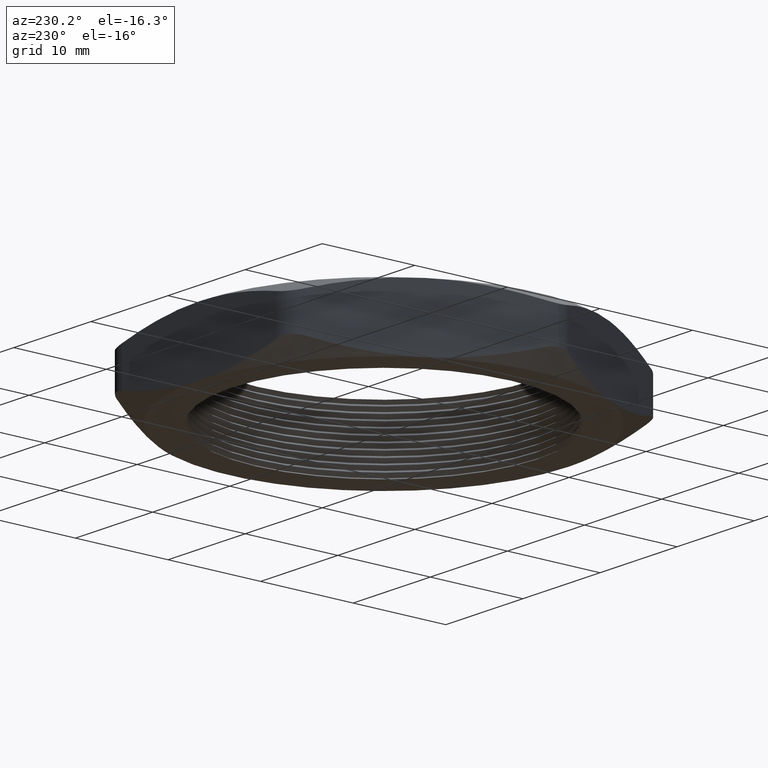
[diagram: clean part render]
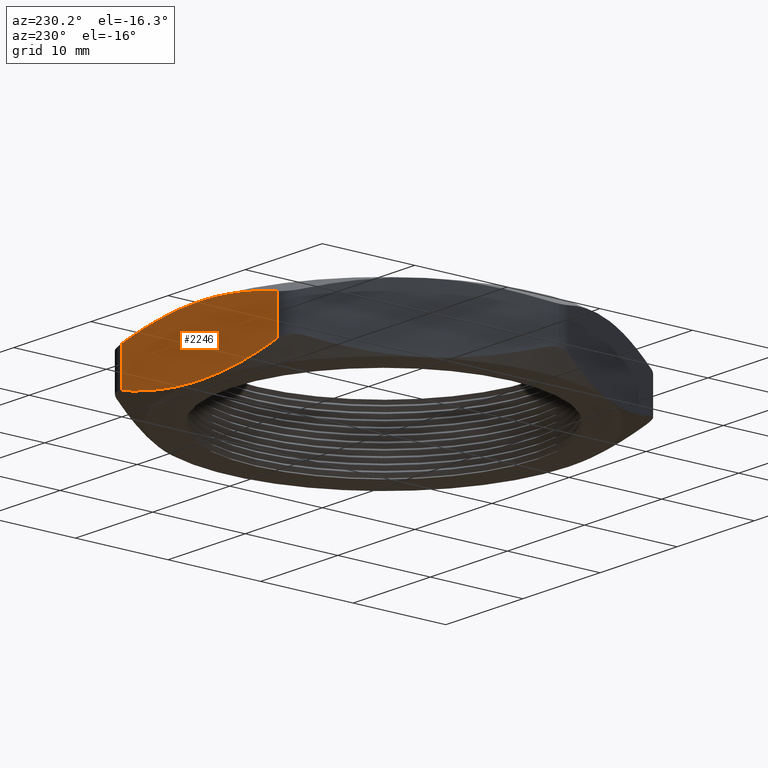
[diagram: same view with one face highlighted and labeled with its STEP entity id]
A machine part, auxiliary view. The second image highlights one B-rep face of the part: STEP entity #2246.
In plain terms, the highlighted planar face has unit normal (0, -1, 0).
Its self-contained STEP definition (entity closure, byte-faithful):
#1035 = CARTESIAN_POINT ( 'NONE',  ( -0.3954849343948989000, 0.7850000000000002500, 0.05426840746364128300 ) ) ;
#1079 = DIRECTION ( 'NONE',  ( 0.0000000000000000000, 0.0000000000000000000, 1.000000000000000000 ) ) ;
#1080 = VECTOR ( 'NONE', #1079, 39.37007874015748100 ) ;
#1081 = CARTESIAN_POINT ( 'NONE',  ( -0.3954849343948936300, 0.7850000000000002500, 0.2700000000000000200 ) ) ;
#1082 = LINE ( 'NONE', #1081, #1080 ) ;
#1089 = CARTESIAN_POINT ( 'NONE',  ( 0.0000000000000000000, 0.7849999999999999200, 0.0000000000000000000 ) ) ;
#1090 = CARTESIAN_POINT ( 'NONE',  ( -0.06673297656976975900, 0.7850000000000001400, -3.201384367575306900E-018 ) ) ;
#1091 = CARTESIAN_POINT ( 'NONE',  ( -0.1330237424117687000, 0.7850000000000003600, 0.004979122510642588000 ) ) ;
#1092 = CARTESIAN_POINT ( 'NONE',  ( -0.2318780627751794400, 0.7850000000000002500, 0.01899897000870633500 ) ) ;
#1093 = CARTESIAN_POINT ( 'NONE',  ( -0.2647336610413537600, 0.7850000000000002500, 0.02475139488869169300 ) ) ;
#1094 = CARTESIAN_POINT ( 'NONE',  ( -0.3302756248464527900, 0.7850000000000003600, 0.03816173999028780300 ) ) ;
#1095 = CARTESIAN_POINT ( 'NONE',  ( -0.3630381295239503700, 0.7850000000000002500, 0.04583982513204162100 ) ) ;
#1096 = CARTESIAN_POINT ( 'NONE',  ( -0.3954849343948989000, 0.7850000000000002500, 0.05426840746364128300 ) ) ;
#1098 = B_SPLINE_CURVE_WITH_KNOTS ( 'NONE', 3,
 ( #1096, #1095, #1094, #1093, #1092, #1091, #1090, #1089 ),
 .UNSPECIFIED., .F., .F.,
 ( 4, 2, 2, 4 ),
 ( 0.02283872067157867800, 0.02537414699772924300, 0.02790957332387981200, 0.03298042597618094200 ),
 .UNSPECIFIED. ) ;
#1112 = CARTESIAN_POINT ( 'NONE',  ( -0.3954849343948988500, 0.7850000000000002500, 0.2157315925363587400 ) ) ;
#1122 = PLANE ( 'NONE',  #1124 ) ;
#1124 = AXIS2_PLACEMENT_3D ( 'NONE', #1175, #1174, #1173 ) ;
#1125 = FACE_OUTER_BOUND ( 'NONE', #2242, .T. ) ;
#1173 = DIRECTION ( 'NONE',  ( 0.0000000000000000000, 0.0000000000000000000, -1.000000000000000000 ) ) ;
#1174 = DIRECTION ( 'NONE',  ( 0.0000000000000000000, -1.000000000000000000, 0.0000000000000000000 ) ) ;
#1175 = CARTESIAN_POINT ( 'NONE',  ( 0.4532199613138567200, 0.7850000000000002500, 0.2700000000000000200 ) ) ;
#1214 = CARTESIAN_POINT ( 'NONE',  ( 0.3954849343948942900, 0.7850000000000002500, 0.05426840746364027000 ) ) ;
#1241 = CARTESIAN_POINT ( 'NONE',  ( 0.0000000000000000000, 0.7850000000000002500, 0.2700000000000000200 ) ) ;
#1243 = B_SPLINE_CURVE_WITH_KNOTS ( 'NONE', 3,
 ( #1241, #1303, #1302, #1301, #1300, #1299, #1298, #1297 ),
 .UNSPECIFIED., .F., .F.,
 ( 4, 2, 2, 4 ),
 ( 0.06576646211690598300, 0.07083825212854769100, 0.07337414713436854500, 0.07591004214018939900 ),
 .UNSPECIFIED. ) ;
#1245 = CARTESIAN_POINT ( 'NONE',  ( 0.0000000000000000000, 0.7850000000000002500, 0.2700000000000000200 ) ) ;
#1246 = CARTESIAN_POINT ( 'NONE',  ( 0.03335006267424757400, 0.7850000000000002500, 0.2700000000000000700 ) ) ;
#1247 = CARTESIAN_POINT ( 'NONE',  ( 0.06680954462921447100, 0.7850000000000003600, 0.2687679810336712200 ) ) ;
#1248 = CARTESIAN_POINT ( 'NONE',  ( 0.1339463094652576000, 0.7850000000000002500, 0.2638515885425967200 ) ) ;
#1249 = CARTESIAN_POINT ( 'NONE',  ( 0.1672885223881052100, 0.7850000000000001400, 0.2601913730965734200 ) ) ;
#1250 = CARTESIAN_POINT ( 'NONE',  ( 0.2663661957990888200, 0.7849999999999999200, 0.2460477934152464100 ) ) ;
#1251 = CARTESIAN_POINT ( 'NONE',  ( 0.3313189336734860800, 0.7850000000000001400, 0.2323997489887721100 ) ) ;
#1252 = CARTESIAN_POINT ( 'NONE',  ( 0.3954849343948942900, 0.7850000000000002500, 0.2157315925363597300 ) ) ;
#1253 = CARTESIAN_POINT ( 'NONE',  ( 0.0000000000000000000, 0.7850000000000002500, 0.2700000000000000200 ) ) ;
#1254 = B_SPLINE_CURVE_WITH_KNOTS ( 'NONE', 3,
 ( #1252, #1251, #1250, #1249, #1248, #1247, #1246, #1245 ),
 .UNSPECIFIED., .F., .F.,
 ( 4, 2, 2, 4 ),
 ( 0.05562787556175466400, 0.06069716883933032300, 0.06323181547811815300, 0.06576646211690598300 ),
 .UNSPECIFIED. ) ;
#1255 = CARTESIAN_POINT ( 'NONE',  ( 0.3954849343948942900, 0.7850000000000002500, 0.2157315925363597300 ) ) ;
#1256 = DIRECTION ( 'NONE',  ( 0.0000000000000000000, 0.0000000000000000000, -1.000000000000000000 ) ) ;
#1257 = VECTOR ( 'NONE', #1256, 39.37007874015748100 ) ;
#1258 = CARTESIAN_POINT ( 'NONE',  ( 0.3954849343948941800, 0.7850000000000002500, 0.2700000000000000200 ) ) ;
#1259 = LINE ( 'NONE', #1258, #1257 ) ;
#1280 = CARTESIAN_POINT ( 'NONE',  ( 0.3954849343948942900, 0.7850000000000002500, 0.05426840746364027000 ) ) ;
#1281 = CARTESIAN_POINT ( 'NONE',  ( 0.3313189336734863000, 0.7850000000000002500, 0.03760025101122788100 ) ) ;
#1282 = CARTESIAN_POINT ( 'NONE',  ( 0.2663661957990888800, 0.7850000000000003600, 0.02395220658475356500 ) ) ;
#1283 = CARTESIAN_POINT ( 'NONE',  ( 0.1672885223881053500, 0.7850000000000002500, 0.009808626903426613900 ) ) ;
#1284 = CARTESIAN_POINT ( 'NONE',  ( 0.1339463094652578700, 0.7850000000000002500, 0.006148411457403356000 ) ) ;
#1285 = CARTESIAN_POINT ( 'NONE',  ( 0.06680954462921474800, 0.7850000000000003600, 0.001232018966328850600 ) ) ;
#1286 = CARTESIAN_POINT ( 'NONE',  ( 0.03335006267424770600, 0.7850000000000003600, 1.600692183787654600E-018 ) ) ;
#1287 = CARTESIAN_POINT ( 'NONE',  ( 0.0000000000000000000, 0.7849999999999999200, 0.0000000000000000000 ) ) ;
#1290 = B_SPLINE_CURVE_WITH_KNOTS ( 'NONE', 3,
 ( #1287, #1286, #1285, #1284, #1283, #1282, #1281, #1280 ),
 .UNSPECIFIED., .F., .F.,
 ( 4, 2, 2, 4 ),
 ( 0.03298042597618094200, 0.03551460416601949500, 0.03804878235585804100, 0.04311713873553513900 ),
 .UNSPECIFIED. ) ;
#1297 = CARTESIAN_POINT ( 'NONE',  ( -0.3954849343948988500, 0.7850000000000002500, 0.2157315925363587400 ) ) ;
#1298 = CARTESIAN_POINT ( 'NONE',  ( -0.3630381295239505900, 0.7850000000000002500, 0.2241601748679583600 ) ) ;
#1299 = CARTESIAN_POINT ( 'NONE',  ( -0.3302756248464527900, 0.7850000000000003600, 0.2318382600097122500 ) ) ;
#1300 = CARTESIAN_POINT ( 'NONE',  ( -0.2647336610413537600, 0.7850000000000002500, 0.2452486051113083000 ) ) ;
#1301 = CARTESIAN_POINT ( 'NONE',  ( -0.2318780627751796400, 0.7850000000000001400, 0.2510010299912935900 ) ) ;
#1302 = CARTESIAN_POINT ( 'NONE',  ( -0.1330237424117688100, 0.7849999999999999200, 0.2650208774893572600 ) ) ;
#1303 = CARTESIAN_POINT ( 'NONE',  ( -0.06673297656976985600, 0.7850000000000001400, 0.2699999999999999600 ) ) ;
#1821 = CARTESIAN_POINT ( 'NONE',  ( 0.0000000000000000000, 0.7849999999999999200, 0.0000000000000000000 ) ) ;
#2211 = VERTEX_POINT ( 'NONE', #1035 ) ;
#2214 = ORIENTED_EDGE ( 'NONE', *, *, #2219, .T. ) ;
#2219 = EDGE_CURVE ( 'NONE', #2211, #2227, #1082, .T. ) ;
#2227 = VERTEX_POINT ( 'NONE', #1112 ) ;
#2229 = ORIENTED_EDGE ( 'NONE', *, *, #2231, .F. ) ;
#2231 = EDGE_CURVE ( 'NONE', #2211, #2635, #1098, .T. ) ;
#2242 = EDGE_LOOP ( 'NONE', ( #2229, #2214, #2313, #2311, #2307, #2319 ) ) ;
#2246 = ADVANCED_FACE ( 'NONE', ( #1125 ), #1122, .F. ) ;
#2299 = VERTEX_POINT ( 'NONE', #1214 ) ;
#2306 = EDGE_CURVE ( 'NONE', #2308, #2299, #1259, .T. ) ;
#2307 = ORIENTED_EDGE ( 'NONE', *, *, #2306, .T. ) ;
#2308 = VERTEX_POINT ( 'NONE', #1255 ) ;
#2309 = EDGE_CURVE ( 'NONE', #2308, #2310, #1254, .T. ) ;
#2310 = VERTEX_POINT ( 'NONE', #1253 ) ;
#2311 = ORIENTED_EDGE ( 'NONE', *, *, #2309, .F. ) ;
#2313 = ORIENTED_EDGE ( 'NONE', *, *, #2314, .F. ) ;
#2314 = EDGE_CURVE ( 'NONE', #2310, #2227, #1243, .T. ) ;
#2318 = EDGE_CURVE ( 'NONE', #2635, #2299, #1290, .T. ) ;
#2319 = ORIENTED_EDGE ( 'NONE', *, *, #2318, .F. ) ;
#2635 = VERTEX_POINT ( 'NONE', #1821 ) ;